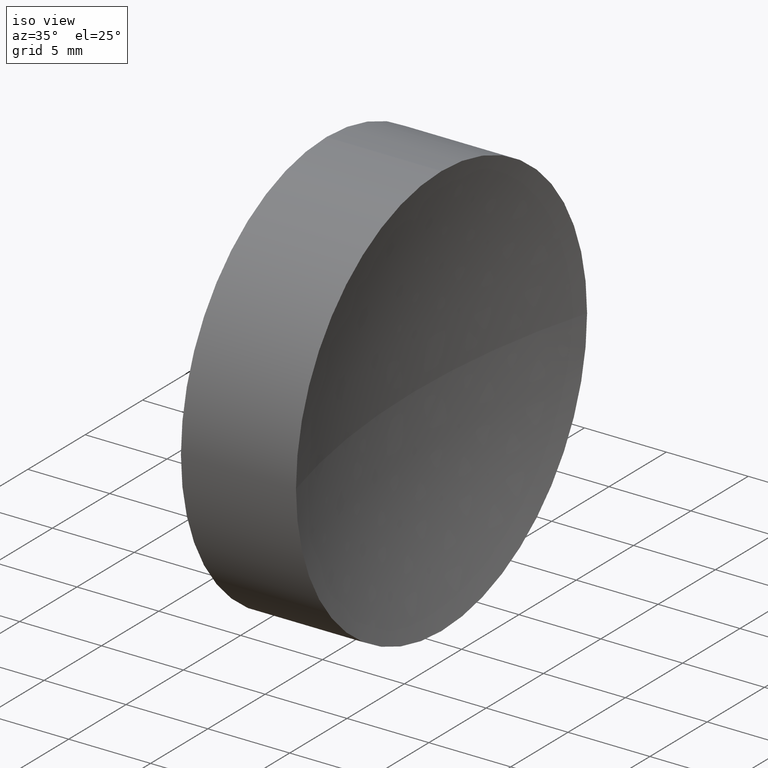
[diagram: clean part render]
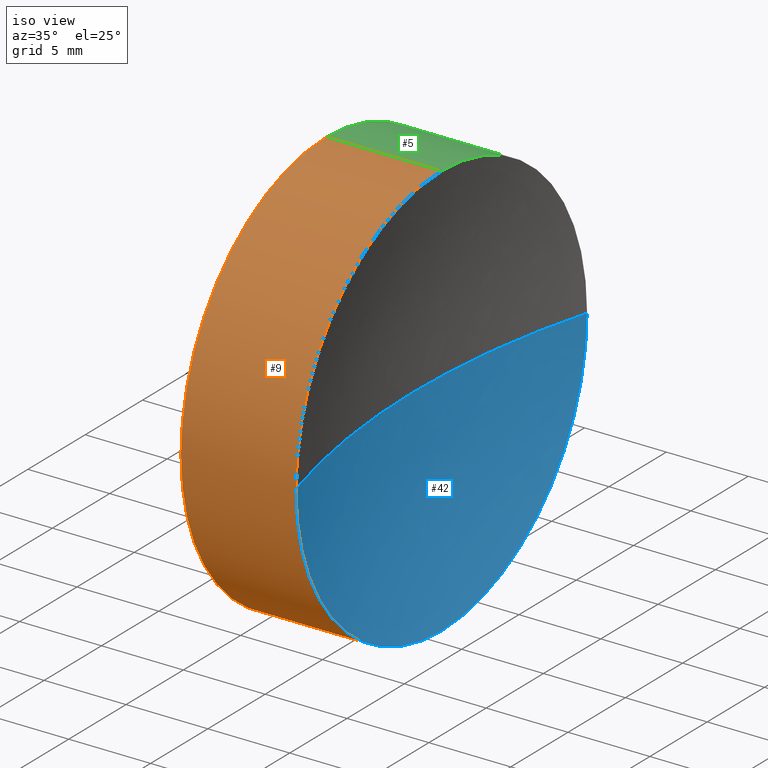
[diagram: same view with three faces highlighted in distinct colors, each labeled with its STEP entity id]
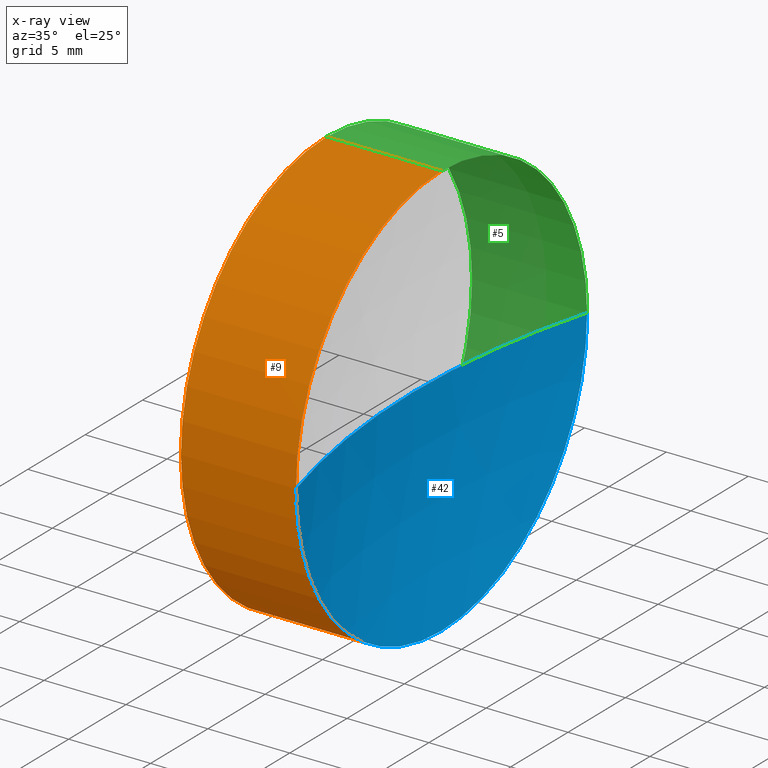
[diagram: x-ray of the same camera — body ghosted, the three highlighted faces saturated]
A machine part, iso view with three faces highlighted in distinct colors.
The next image is the same camera in x-ray (body ghosted, the three faces saturated) — at least one of them is partly hidden behind the body in this view.
Their STEP definitions:

[orange] entity #9 — the highlighted cylindrical surface (partial cylindrical patch) has radius 12.7 mm, axis along (-1, -0, -0).
#2 = VECTOR ( 'NONE', #206, 1000.000000000000000 ) ;
#7 = LINE ( 'NONE', #179, #27 ) ;
#9 = ADVANCED_FACE ( 'NONE', ( #64 ), #195, .T. ) ;
#11 = CARTESIAN_POINT ( 'NONE',  ( 123.6166688312012100, 65.22260287298739500, 12.69999999999998700 ) ) ;
#16 = VERTEX_POINT ( 'NONE', #217 ) ;
#17 = CIRCLE ( 'NONE', #159, 12.69999999999997400 ) ;
#20 = VERTEX_POINT ( 'NONE', #162 ) ;
#27 = VECTOR ( 'NONE', #172, 1000.000000000000000 ) ;
#36 = AXIS2_PLACEMENT_3D ( 'NONE', #183, #199, #92 ) ;
#39 = EDGE_LOOP ( 'NONE', ( #70, #87, #59, #108, #88, #197 ) ) ;
#45 = DIRECTION ( 'NONE',  ( -1.000000000000000000, -0.0000000000000000000, -0.0000000000000000000 ) ) ;
#48 = LINE ( 'NONE', #65, #2 ) ;
#49 = CARTESIAN_POINT ( 'NONE',  ( 109.9369352260864600, 65.22260287298739500, 0.0000000000000000000 ) ) ;
#51 = VERTEX_POINT ( 'NONE', #211 ) ;
#59 = ORIENTED_EDGE ( 'NONE', *, *, #212, .T. ) ;
#64 = FACE_OUTER_BOUND ( 'NONE', #39, .T. ) ;
#65 = CARTESIAN_POINT ( 'NONE',  ( 109.9369352260864600, 65.22260287298739500, -12.69999999999998200 ) ) ;
#70 = ORIENTED_EDGE ( 'NONE', *, *, #227, .F. ) ;
#80 = CARTESIAN_POINT ( 'NONE',  ( 123.6166688312012100, 65.22260287298739500, 0.0000000000000000000 ) ) ;
#83 = EDGE_CURVE ( 'NONE', #20, #51, #102, .T. ) ;
#87 = ORIENTED_EDGE ( 'NONE', *, *, #83, .T. ) ;
#88 = ORIENTED_EDGE ( 'NONE', *, *, #141, .F. ) ;
#91 = EDGE_CURVE ( 'NONE', #215, #93, #7, .T. ) ;
#92 = DIRECTION ( 'NONE',  ( 0.0000000000000000000, 0.0000000000000000000, 1.000000000000000000 ) ) ;
#93 = VERTEX_POINT ( 'NONE', #166 ) ;
#96 = DIRECTION ( 'NONE',  ( 0.0000000000000000000, 0.0000000000000000000, 1.000000000000000000 ) ) ;
#100 = DIRECTION ( 'NONE',  ( -1.000000000000000000, -0.0000000000000000000, -0.0000000000000000000 ) ) ;
#102 = CIRCLE ( 'NONE', #134, 12.69999999999998900 ) ;
#108 = ORIENTED_EDGE ( 'NONE', *, *, #91, .T. ) ;
#134 = AXIS2_PLACEMENT_3D ( 'NONE', #202, #204, #170 ) ;
#136 = AXIS2_PLACEMENT_3D ( 'NONE', #49, #216, #198 ) ;
#137 = VERTEX_POINT ( 'NONE', #223 ) ;
#141 = EDGE_CURVE ( 'NONE', #16, #93, #164, .T. ) ;
#159 = AXIS2_PLACEMENT_3D ( 'NONE', #205, #100, #229 ) ;
#162 = CARTESIAN_POINT ( 'NONE',  ( 123.6166688312012100, 65.22260287298739500, -12.69999999999998700 ) ) ;
#164 = CIRCLE ( 'NONE', #36, 12.69999999999997400 ) ;
#166 = CARTESIAN_POINT ( 'NONE',  ( 116.5887380612574700, 65.22260287298739500, 12.69999999999997400 ) ) ;
#169 = AXIS2_PLACEMENT_3D ( 'NONE', #80, #45, #96 ) ;
#170 = DIRECTION ( 'NONE',  ( 0.0000000000000000000, 0.0000000000000000000, 1.000000000000000000 ) ) ;
#172 = DIRECTION ( 'NONE',  ( -1.000000000000000000, -0.0000000000000000000, -0.0000000000000000000 ) ) ;
#179 = CARTESIAN_POINT ( 'NONE',  ( 109.9369352260864600, 65.22260287298739500, 12.69999999999998200 ) ) ;
#183 = CARTESIAN_POINT ( 'NONE',  ( 116.5887380612574700, 65.22260287298739500, 0.0000000000000000000 ) ) ;
#189 = CIRCLE ( 'NONE', #169, 12.69999999999998900 ) ;
#195 = CYLINDRICAL_SURFACE ( 'NONE', #136, 12.69999999999998200 ) ;
#197 = ORIENTED_EDGE ( 'NONE', *, *, #209, .F. ) ;
#198 = DIRECTION ( 'NONE',  ( 0.0000000000000000000, 0.0000000000000000000, 1.000000000000000000 ) ) ;
#199 = DIRECTION ( 'NONE',  ( -1.000000000000000000, -0.0000000000000000000, -0.0000000000000000000 ) ) ;
#202 = CARTESIAN_POINT ( 'NONE',  ( 123.6166688312012100, 65.22260287298739500, 0.0000000000000000000 ) ) ;
#204 = DIRECTION ( 'NONE',  ( -1.000000000000000000, -0.0000000000000000000, -0.0000000000000000000 ) ) ;
#205 = CARTESIAN_POINT ( 'NONE',  ( 116.5887380612574700, 65.22260287298739500, 0.0000000000000000000 ) ) ;
#206 = DIRECTION ( 'NONE',  ( -1.000000000000000000, -0.0000000000000000000, -0.0000000000000000000 ) ) ;
#209 = EDGE_CURVE ( 'NONE', #137, #16, #17, .T. ) ;
#211 = CARTESIAN_POINT ( 'NONE',  ( 123.6166688312012100, 52.52260287298739900, -1.555301434917135500E-015 ) ) ;
#212 = EDGE_CURVE ( 'NONE', #51, #215, #189, .T. ) ;
#215 = VERTEX_POINT ( 'NONE', #11 ) ;
#216 = DIRECTION ( 'NONE',  ( -1.000000000000000000, -0.0000000000000000000, -0.0000000000000000000 ) ) ;
#217 = CARTESIAN_POINT ( 'NONE',  ( 116.5887380612574700, 52.52260287298741300, -1.555301434917133900E-015 ) ) ;
#223 = CARTESIAN_POINT ( 'NONE',  ( 116.5887380612574700, 65.22260287298739500, -12.69999999999997400 ) ) ;
#227 = EDGE_CURVE ( 'NONE', #20, #137, #48, .T. ) ;
#229 = DIRECTION ( 'NONE',  ( 0.0000000000000000000, 0.0000000000000000000, 1.000000000000000000 ) ) ;

[blue] entity #42 — the highlighted spherical surface has radius 46.6 mm.
#4 = EDGE_LOOP ( 'NONE', ( #119, #12, #98, #156 ) ) ;
#12 = ORIENTED_EDGE ( 'NONE', *, *, #83, .F. ) ;
#20 = VERTEX_POINT ( 'NONE', #162 ) ;
#22 = CIRCLE ( 'NONE', #122, 46.60000000000019300 ) ;
#26 = DIRECTION ( 'NONE',  ( 0.0000000000000000000, 1.000000000000000000, 1.224646799147353200E-016 ) ) ;
#34 = CARTESIAN_POINT ( 'NONE',  ( 168.4527034462295200, 65.22260287298738000, 0.0000000000000000000 ) ) ;
#37 = CARTESIAN_POINT ( 'NONE',  ( 121.8527034462293400, 65.22260287298738000, 0.0000000000000000000 ) ) ;
#42 = ADVANCED_FACE ( 'NONE', ( #109 ), #152, .F. ) ;
#50 = VERTEX_POINT ( 'NONE', #37 ) ;
#51 = VERTEX_POINT ( 'NONE', #211 ) ;
#72 = CIRCLE ( 'NONE', #107, 46.60000000000019300 ) ;
#73 = DIRECTION ( 'NONE',  ( 0.0000000000000000000, 1.000000000000000000, 0.0000000000000000000 ) ) ;
#76 = AXIS2_PLACEMENT_3D ( 'NONE', #129, #146, #222 ) ;
#83 = EDGE_CURVE ( 'NONE', #20, #51, #102, .T. ) ;
#98 = ORIENTED_EDGE ( 'NONE', *, *, #144, .F. ) ;
#102 = CIRCLE ( 'NONE', #134, 12.69999999999998900 ) ;
#106 = CIRCLE ( 'NONE', #76, 12.69999999999998900 ) ;
#107 = AXIS2_PLACEMENT_3D ( 'NONE', #151, #127, #26 ) ;
#109 = FACE_OUTER_BOUND ( 'NONE', #4, .T. ) ;
#111 = DIRECTION ( 'NONE',  ( 1.000000000000000000, 0.0000000000000000000, 0.0000000000000000000 ) ) ;
#114 = DIRECTION ( 'NONE',  ( 0.0000000000000000000, 0.0000000000000000000, 1.000000000000000000 ) ) ;
#119 = ORIENTED_EDGE ( 'NONE', *, *, #157, .F. ) ;
#122 = AXIS2_PLACEMENT_3D ( 'NONE', #220, #114, #111 ) ;
#125 = AXIS2_PLACEMENT_3D ( 'NONE', #34, #145, #73 ) ;
#127 = DIRECTION ( 'NONE',  ( 0.0000000000000000000, 1.224646799147353200E-016, -1.000000000000000000 ) ) ;
#129 = CARTESIAN_POINT ( 'NONE',  ( 123.6166688312012100, 65.22260287298739500, 0.0000000000000000000 ) ) ;
#134 = AXIS2_PLACEMENT_3D ( 'NONE', #202, #204, #170 ) ;
#144 = EDGE_CURVE ( 'NONE', #181, #20, #106, .T. ) ;
#145 = DIRECTION ( 'NONE',  ( 0.0000000000000000000, 0.0000000000000000000, -1.000000000000000000 ) ) ;
#146 = DIRECTION ( 'NONE',  ( -1.000000000000000000, -0.0000000000000000000, -0.0000000000000000000 ) ) ;
#151 = CARTESIAN_POINT ( 'NONE',  ( 168.4527034462295200, 65.22260287298738000, 0.0000000000000000000 ) ) ;
#152 = SPHERICAL_SURFACE ( 'NONE', #125, 46.60000000000019300 ) ;
#156 = ORIENTED_EDGE ( 'NONE', *, *, #167, .T. ) ;
#157 = EDGE_CURVE ( 'NONE', #51, #50, #72, .T. ) ;
#162 = CARTESIAN_POINT ( 'NONE',  ( 123.6166688312012100, 65.22260287298739500, -12.69999999999998700 ) ) ;
#167 = EDGE_CURVE ( 'NONE', #181, #50, #22, .T. ) ;
#170 = DIRECTION ( 'NONE',  ( 0.0000000000000000000, 0.0000000000000000000, 1.000000000000000000 ) ) ;
#181 = VERTEX_POINT ( 'NONE', #186 ) ;
#186 = CARTESIAN_POINT ( 'NONE',  ( 123.6166688312012100, 77.92260287298738300, 0.0000000000000000000 ) ) ;
#202 = CARTESIAN_POINT ( 'NONE',  ( 123.6166688312012100, 65.22260287298739500, 0.0000000000000000000 ) ) ;
#204 = DIRECTION ( 'NONE',  ( -1.000000000000000000, -0.0000000000000000000, -0.0000000000000000000 ) ) ;
#211 = CARTESIAN_POINT ( 'NONE',  ( 123.6166688312012100, 52.52260287298739900, -1.555301434917135500E-015 ) ) ;
#220 = CARTESIAN_POINT ( 'NONE',  ( 168.4527034462295200, 65.22260287298738000, 0.0000000000000000000 ) ) ;
#222 = DIRECTION ( 'NONE',  ( 0.0000000000000000000, 0.0000000000000000000, 1.000000000000000000 ) ) ;

[green] entity #5 — the highlighted cylindrical surface (partial cylindrical patch) has radius 12.7 mm, axis along (-1, -0, -0).
#2 = VECTOR ( 'NONE', #206, 1000.000000000000000 ) ;
#5 = ADVANCED_FACE ( 'NONE', ( #112 ), #19, .T. ) ;
#7 = LINE ( 'NONE', #179, #27 ) ;
#11 = CARTESIAN_POINT ( 'NONE',  ( 123.6166688312012100, 65.22260287298739500, 12.69999999999998700 ) ) ;
#19 = CYLINDRICAL_SURFACE ( 'NONE', #104, 12.69999999999998200 ) ;
#20 = VERTEX_POINT ( 'NONE', #162 ) ;
#24 = DIRECTION ( 'NONE',  ( 0.0000000000000000000, 0.0000000000000000000, 1.000000000000000000 ) ) ;
#27 = VECTOR ( 'NONE', #172, 1000.000000000000000 ) ;
#30 = VERTEX_POINT ( 'NONE', #177 ) ;
#40 = DIRECTION ( 'NONE',  ( 0.0000000000000000000, 0.0000000000000000000, 1.000000000000000000 ) ) ;
#46 = ORIENTED_EDGE ( 'NONE', *, *, #193, .F. ) ;
#48 = LINE ( 'NONE', #65, #2 ) ;
#54 = ORIENTED_EDGE ( 'NONE', *, *, #144, .T. ) ;
#55 = DIRECTION ( 'NONE',  ( -1.000000000000000000, -0.0000000000000000000, -0.0000000000000000000 ) ) ;
#57 = CARTESIAN_POINT ( 'NONE',  ( 123.6166688312012100, 65.22260287298739500, 0.0000000000000000000 ) ) ;
#62 = EDGE_LOOP ( 'NONE', ( #54, #103, #182, #46, #142, #185 ) ) ;
#65 = CARTESIAN_POINT ( 'NONE',  ( 109.9369352260864600, 65.22260287298739500, -12.69999999999998200 ) ) ;
#76 = AXIS2_PLACEMENT_3D ( 'NONE', #129, #146, #222 ) ;
#77 = DIRECTION ( 'NONE',  ( 0.0000000000000000000, 0.0000000000000000000, 1.000000000000000000 ) ) ;
#79 = CARTESIAN_POINT ( 'NONE',  ( 116.5887380612574700, 65.22260287298739500, 0.0000000000000000000 ) ) ;
#89 = CARTESIAN_POINT ( 'NONE',  ( 109.9369352260864600, 65.22260287298739500, 0.0000000000000000000 ) ) ;
#91 = EDGE_CURVE ( 'NONE', #215, #93, #7, .T. ) ;
#93 = VERTEX_POINT ( 'NONE', #166 ) ;
#97 = EDGE_CURVE ( 'NONE', #215, #181, #105, .T. ) ;
#99 = AXIS2_PLACEMENT_3D ( 'NONE', #153, #118, #155 ) ;
#103 = ORIENTED_EDGE ( 'NONE', *, *, #227, .T. ) ;
#104 = AXIS2_PLACEMENT_3D ( 'NONE', #89, #138, #24 ) ;
#105 = CIRCLE ( 'NONE', #140, 12.69999999999998900 ) ;
#106 = CIRCLE ( 'NONE', #76, 12.69999999999998900 ) ;
#112 = FACE_OUTER_BOUND ( 'NONE', #62, .T. ) ;
#115 = CIRCLE ( 'NONE', #99, 12.69999999999997400 ) ;
#118 = DIRECTION ( 'NONE',  ( -1.000000000000000000, -0.0000000000000000000, -0.0000000000000000000 ) ) ;
#120 = AXIS2_PLACEMENT_3D ( 'NONE', #79, #55, #40 ) ;
#126 = DIRECTION ( 'NONE',  ( -1.000000000000000000, -0.0000000000000000000, -0.0000000000000000000 ) ) ;
#129 = CARTESIAN_POINT ( 'NONE',  ( 123.6166688312012100, 65.22260287298739500, 0.0000000000000000000 ) ) ;
#137 = VERTEX_POINT ( 'NONE', #223 ) ;
#138 = DIRECTION ( 'NONE',  ( -1.000000000000000000, -0.0000000000000000000, -0.0000000000000000000 ) ) ;
#140 = AXIS2_PLACEMENT_3D ( 'NONE', #57, #126, #77 ) ;
#142 = ORIENTED_EDGE ( 'NONE', *, *, #91, .F. ) ;
#144 = EDGE_CURVE ( 'NONE', #181, #20, #106, .T. ) ;
#146 = DIRECTION ( 'NONE',  ( -1.000000000000000000, -0.0000000000000000000, -0.0000000000000000000 ) ) ;
#153 = CARTESIAN_POINT ( 'NONE',  ( 116.5887380612574700, 65.22260287298739500, 0.0000000000000000000 ) ) ;
#155 = DIRECTION ( 'NONE',  ( 0.0000000000000000000, 0.0000000000000000000, 1.000000000000000000 ) ) ;
#158 = CIRCLE ( 'NONE', #120, 12.69999999999997400 ) ;
#162 = CARTESIAN_POINT ( 'NONE',  ( 123.6166688312012100, 65.22260287298739500, -12.69999999999998700 ) ) ;
#166 = CARTESIAN_POINT ( 'NONE',  ( 116.5887380612574700, 65.22260287298739500, 12.69999999999997400 ) ) ;
#172 = DIRECTION ( 'NONE',  ( -1.000000000000000000, -0.0000000000000000000, -0.0000000000000000000 ) ) ;
#177 = CARTESIAN_POINT ( 'NONE',  ( 116.5887380612574700, 77.92260287298735500, 0.0000000000000000000 ) ) ;
#179 = CARTESIAN_POINT ( 'NONE',  ( 109.9369352260864600, 65.22260287298739500, 12.69999999999998200 ) ) ;
#181 = VERTEX_POINT ( 'NONE', #186 ) ;
#182 = ORIENTED_EDGE ( 'NONE', *, *, #218, .F. ) ;
#185 = ORIENTED_EDGE ( 'NONE', *, *, #97, .T. ) ;
#186 = CARTESIAN_POINT ( 'NONE',  ( 123.6166688312012100, 77.92260287298738300, 0.0000000000000000000 ) ) ;
#193 = EDGE_CURVE ( 'NONE', #93, #30, #158, .T. ) ;
#206 = DIRECTION ( 'NONE',  ( -1.000000000000000000, -0.0000000000000000000, -0.0000000000000000000 ) ) ;
#215 = VERTEX_POINT ( 'NONE', #11 ) ;
#218 = EDGE_CURVE ( 'NONE', #30, #137, #115, .T. ) ;
#222 = DIRECTION ( 'NONE',  ( 0.0000000000000000000, 0.0000000000000000000, 1.000000000000000000 ) ) ;
#223 = CARTESIAN_POINT ( 'NONE',  ( 116.5887380612574700, 65.22260287298739500, -12.69999999999997400 ) ) ;
#227 = EDGE_CURVE ( 'NONE', #20, #137, #48, .T. ) ;